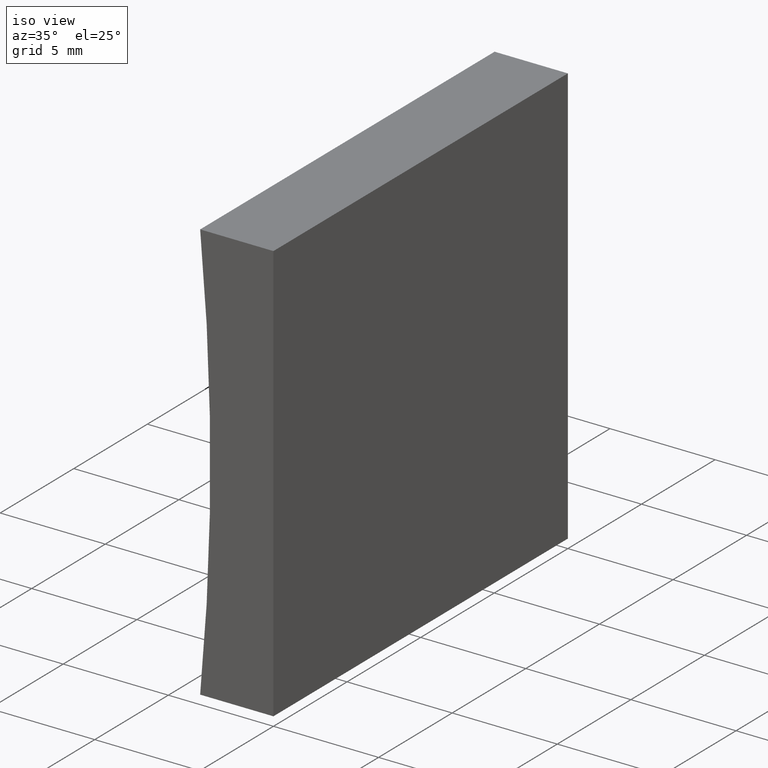
[diagram: clean part render]
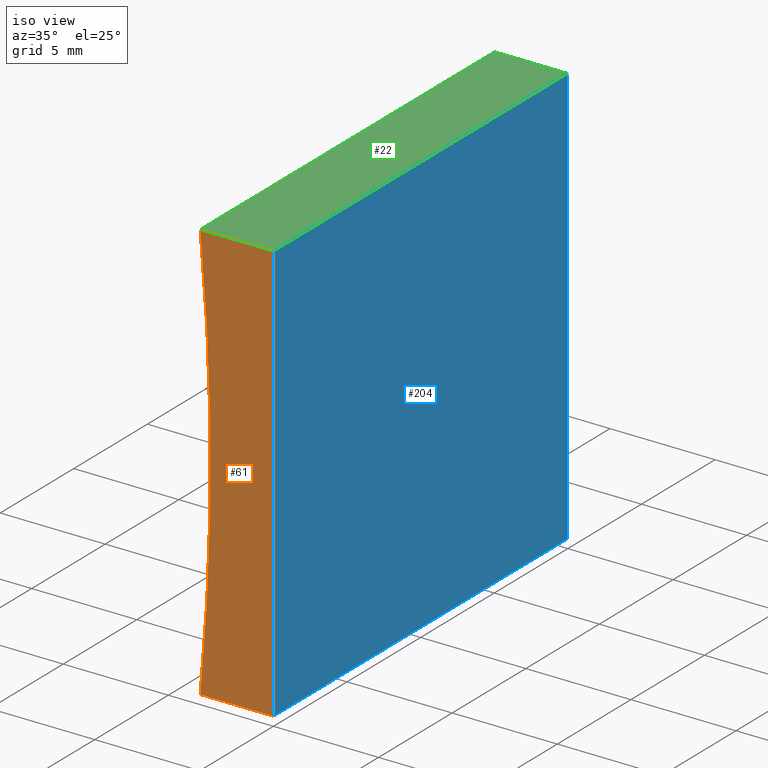
[diagram: same view with three faces highlighted in distinct colors, each labeled with its STEP entity id]
A machine part, iso view with three faces highlighted in distinct colors.
Their STEP definitions:

[orange] entity #61 — the highlighted planar face has unit normal (0, 1, 0).
#1 = VERTEX_POINT ( 'NONE', #35 ) ;
#5 = EDGE_CURVE ( 'NONE', #1, #146, #85, .T. ) ;
#10 = AXIS2_PLACEMENT_3D ( 'NONE', #198, #184, #137 ) ;
#13 = FACE_OUTER_BOUND ( 'NONE', #107, .T. ) ;
#15 = DIRECTION ( 'NONE',  ( 0.0000000000000000000, 1.000000000000000000, 0.0000000000000000000 ) ) ;
#27 = VERTEX_POINT ( 'NONE', #163 ) ;
#33 = EDGE_CURVE ( 'NONE', #146, #96, #42, .T. ) ;
#35 = CARTESIAN_POINT ( 'NONE',  ( -3.484695015755795200, 0.0000000000000000000, 19.99999999999999600 ) ) ;
#38 = CARTESIAN_POINT ( 'NONE',  ( 0.0000000000000000000, 0.0000000000000000000, 0.0000000000000000000 ) ) ;
#41 = CARTESIAN_POINT ( 'NONE',  ( 1.224646799147353300E-015, 0.0000000000000000000, 20.00000000000000000 ) ) ;
#42 = LINE ( 'NONE', #159, #108 ) ;
#44 = VECTOR ( 'NONE', #78, 1000.000000000000000 ) ;
#61 = ADVANCED_FACE ( 'NONE', ( #13 ), #122, .F. ) ;
#75 = CIRCLE ( 'NONE', #10, 103.4000000000000200 ) ;
#77 = DIRECTION ( 'NONE',  ( 1.000000000000000000, -0.0000000000000000000, 9.956242759457458300E-016 ) ) ;
#78 = DIRECTION ( 'NONE',  ( -1.000000000000000000, 0.0000000000000000000, 9.956242759457456300E-016 ) ) ;
#84 = CARTESIAN_POINT ( 'NONE',  ( 0.0000000000000000000, 0.0000000000000000000, 0.0000000000000000000 ) ) ;
#85 = LINE ( 'NONE', #139, #158 ) ;
#87 = LINE ( 'NONE', #38, #44 ) ;
#90 = EDGE_CURVE ( 'NONE', #27, #1, #75, .T. ) ;
#95 = EDGE_CURVE ( 'NONE', #96, #27, #87, .T. ) ;
#96 = VERTEX_POINT ( 'NONE', #84 ) ;
#106 = DIRECTION ( 'NONE',  ( -6.123233995736766000E-017, -0.0000000000000000000, -1.000000000000000000 ) ) ;
#107 = EDGE_LOOP ( 'NONE', ( #134, #113, #141, #177 ) ) ;
#108 = VECTOR ( 'NONE', #106, 1000.000000000000000 ) ;
#112 = AXIS2_PLACEMENT_3D ( 'NONE', #148, #15, #164 ) ;
#113 = ORIENTED_EDGE ( 'NONE', *, *, #33, .F. ) ;
#122 = PLANE ( 'NONE',  #112 ) ;
#134 = ORIENTED_EDGE ( 'NONE', *, *, #95, .F. ) ;
#137 = DIRECTION ( 'NONE',  ( 0.0000000000000000000, 0.0000000000000000000, 1.000000000000000000 ) ) ;
#139 = CARTESIAN_POINT ( 'NONE',  ( 1.224646799147353300E-015, 0.0000000000000000000, 20.00000000000000000 ) ) ;
#141 = ORIENTED_EDGE ( 'NONE', *, *, #5, .F. ) ;
#146 = VERTEX_POINT ( 'NONE', #41 ) ;
#148 = CARTESIAN_POINT ( 'NONE',  ( -106.4000000000000100, 0.0000000000000000000, 10.00000000000001600 ) ) ;
#158 = VECTOR ( 'NONE', #77, 1000.000000000000000 ) ;
#159 = CARTESIAN_POINT ( 'NONE',  ( 0.0000000000000000000, 0.0000000000000000000, 0.0000000000000000000 ) ) ;
#163 = CARTESIAN_POINT ( 'NONE',  ( -3.484695015755795200, 0.0000000000000000000, 1.040834085586084300E-014 ) ) ;
#164 = DIRECTION ( 'NONE',  ( 0.0000000000000000000, -0.0000000000000000000, 1.000000000000000000 ) ) ;
#177 = ORIENTED_EDGE ( 'NONE', *, *, #90, .F. ) ;
#184 = DIRECTION ( 'NONE',  ( -0.0000000000000000000, -1.000000000000000000, -0.0000000000000000000 ) ) ;
#198 = CARTESIAN_POINT ( 'NONE',  ( -106.4000000000000100, 0.0000000000000000000, 10.00000000000001600 ) ) ;

[blue] entity #204 — the highlighted planar face has unit normal (-1, 0, 0).
#4 = VECTOR ( 'NONE', #156, 1000.000000000000000 ) ;
#6 = LINE ( 'NONE', #105, #165 ) ;
#23 = CARTESIAN_POINT ( 'NONE',  ( 1.224646799147353300E-015, 20.00000000000000000, 20.00000000000000000 ) ) ;
#24 = VERTEX_POINT ( 'NONE', #56 ) ;
#33 = EDGE_CURVE ( 'NONE', #146, #96, #42, .T. ) ;
#36 = DIRECTION ( 'NONE',  ( -1.000000000000000000, 0.0000000000000000000, 6.123233995736766000E-017 ) ) ;
#41 = CARTESIAN_POINT ( 'NONE',  ( 1.224646799147353300E-015, 0.0000000000000000000, 20.00000000000000000 ) ) ;
#42 = LINE ( 'NONE', #159, #108 ) ;
#45 = EDGE_CURVE ( 'NONE', #169, #24, #138, .T. ) ;
#47 = DIRECTION ( 'NONE',  ( -0.0000000000000000000, -1.000000000000000000, -0.0000000000000000000 ) ) ;
#48 = ORIENTED_EDGE ( 'NONE', *, *, #45, .F. ) ;
#56 = CARTESIAN_POINT ( 'NONE',  ( 0.0000000000000000000, 20.00000000000000000, 0.0000000000000000000 ) ) ;
#68 = DIRECTION ( 'NONE',  ( 6.123233995736766000E-017, 0.0000000000000000000, 1.000000000000000000 ) ) ;
#71 = LINE ( 'NONE', #82, #173 ) ;
#81 = DIRECTION ( 'NONE',  ( -0.0000000000000000000, -1.000000000000000000, -0.0000000000000000000 ) ) ;
#82 = CARTESIAN_POINT ( 'NONE',  ( 1.224646799147353300E-015, 20.00000000000000000, 20.00000000000000000 ) ) ;
#84 = CARTESIAN_POINT ( 'NONE',  ( 0.0000000000000000000, 0.0000000000000000000, 0.0000000000000000000 ) ) ;
#86 = EDGE_CURVE ( 'NONE', #24, #96, #6, .T. ) ;
#94 = CARTESIAN_POINT ( 'NONE',  ( 0.0000000000000000000, 20.00000000000000000, 0.0000000000000000000 ) ) ;
#96 = VERTEX_POINT ( 'NONE', #84 ) ;
#104 = ORIENTED_EDGE ( 'NONE', *, *, #195, .T. ) ;
#105 = CARTESIAN_POINT ( 'NONE',  ( 0.0000000000000000000, 20.00000000000000000, 0.0000000000000000000 ) ) ;
#106 = DIRECTION ( 'NONE',  ( -6.123233995736766000E-017, -0.0000000000000000000, -1.000000000000000000 ) ) ;
#108 = VECTOR ( 'NONE', #106, 1000.000000000000000 ) ;
#114 = ORIENTED_EDGE ( 'NONE', *, *, #86, .F. ) ;
#120 = FACE_OUTER_BOUND ( 'NONE', #188, .T. ) ;
#130 = PLANE ( 'NONE',  #133 ) ;
#133 = AXIS2_PLACEMENT_3D ( 'NONE', #94, #36, #68 ) ;
#138 = LINE ( 'NONE', #144, #4 ) ;
#144 = CARTESIAN_POINT ( 'NONE',  ( 0.0000000000000000000, 20.00000000000000000, 0.0000000000000000000 ) ) ;
#146 = VERTEX_POINT ( 'NONE', #41 ) ;
#156 = DIRECTION ( 'NONE',  ( -6.123233995736766000E-017, -0.0000000000000000000, -1.000000000000000000 ) ) ;
#159 = CARTESIAN_POINT ( 'NONE',  ( 0.0000000000000000000, 0.0000000000000000000, 0.0000000000000000000 ) ) ;
#165 = VECTOR ( 'NONE', #47, 1000.000000000000000 ) ;
#169 = VERTEX_POINT ( 'NONE', #23 ) ;
#173 = VECTOR ( 'NONE', #81, 1000.000000000000000 ) ;
#185 = ORIENTED_EDGE ( 'NONE', *, *, #33, .T. ) ;
#188 = EDGE_LOOP ( 'NONE', ( #185, #114, #48, #104 ) ) ;
#195 = EDGE_CURVE ( 'NONE', #169, #146, #71, .T. ) ;
#204 = ADVANCED_FACE ( 'NONE', ( #120 ), #130, .F. ) ;

[green] entity #22 — the highlighted planar face has unit normal (0, 0, -1).
#1 = VERTEX_POINT ( 'NONE', #35 ) ;
#2 = LINE ( 'NONE', #153, #152 ) ;
#5 = EDGE_CURVE ( 'NONE', #1, #146, #85, .T. ) ;
#11 = ORIENTED_EDGE ( 'NONE', *, *, #182, .F. ) ;
#16 = LINE ( 'NONE', #180, #128 ) ;
#22 = ADVANCED_FACE ( 'NONE', ( #202 ), #129, .F. ) ;
#23 = CARTESIAN_POINT ( 'NONE',  ( 1.224646799147353300E-015, 20.00000000000000000, 20.00000000000000000 ) ) ;
#32 = ORIENTED_EDGE ( 'NONE', *, *, #195, .F. ) ;
#35 = CARTESIAN_POINT ( 'NONE',  ( -3.484695015755795200, 0.0000000000000000000, 19.99999999999999600 ) ) ;
#41 = CARTESIAN_POINT ( 'NONE',  ( 1.224646799147353300E-015, 0.0000000000000000000, 20.00000000000000000 ) ) ;
#52 = ORIENTED_EDGE ( 'NONE', *, *, #5, .T. ) ;
#54 = CARTESIAN_POINT ( 'NONE',  ( 1.224646799147353300E-015, 20.00000000000000000, 20.00000000000000000 ) ) ;
#58 = CARTESIAN_POINT ( 'NONE',  ( -3.484695015755795200, 20.00000000000000000, 19.99999999999999600 ) ) ;
#65 = DIRECTION ( 'NONE',  ( 9.956242759457458300E-016, 0.0000000000000000000, -1.000000000000000000 ) ) ;
#71 = LINE ( 'NONE', #82, #173 ) ;
#77 = DIRECTION ( 'NONE',  ( 1.000000000000000000, -0.0000000000000000000, 9.956242759457458300E-016 ) ) ;
#81 = DIRECTION ( 'NONE',  ( -0.0000000000000000000, -1.000000000000000000, -0.0000000000000000000 ) ) ;
#82 = CARTESIAN_POINT ( 'NONE',  ( 1.224646799147353300E-015, 20.00000000000000000, 20.00000000000000000 ) ) ;
#85 = LINE ( 'NONE', #139, #158 ) ;
#100 = ORIENTED_EDGE ( 'NONE', *, *, #147, .T. ) ;
#116 = DIRECTION ( 'NONE',  ( -1.000000000000000000, 0.0000000000000000000, -9.956242759457458300E-016 ) ) ;
#117 = AXIS2_PLACEMENT_3D ( 'NONE', #54, #65, #116 ) ;
#123 = VERTEX_POINT ( 'NONE', #58 ) ;
#128 = VECTOR ( 'NONE', #183, 1000.000000000000000 ) ;
#129 = PLANE ( 'NONE',  #117 ) ;
#139 = CARTESIAN_POINT ( 'NONE',  ( 1.224646799147353300E-015, 0.0000000000000000000, 20.00000000000000000 ) ) ;
#146 = VERTEX_POINT ( 'NONE', #41 ) ;
#147 = EDGE_CURVE ( 'NONE', #123, #1, #2, .T. ) ;
#152 = VECTOR ( 'NONE', #201, 1000.000000000000000 ) ;
#153 = CARTESIAN_POINT ( 'NONE',  ( -3.484695015755795200, 20.00000000000000000, 19.99999999999999600 ) ) ;
#158 = VECTOR ( 'NONE', #77, 1000.000000000000000 ) ;
#169 = VERTEX_POINT ( 'NONE', #23 ) ;
#173 = VECTOR ( 'NONE', #81, 1000.000000000000000 ) ;
#180 = CARTESIAN_POINT ( 'NONE',  ( 1.224646799147353300E-015, 20.00000000000000000, 20.00000000000000000 ) ) ;
#182 = EDGE_CURVE ( 'NONE', #123, #169, #16, .T. ) ;
#183 = DIRECTION ( 'NONE',  ( 1.000000000000000000, -0.0000000000000000000, 9.956242759457458300E-016 ) ) ;
#187 = EDGE_LOOP ( 'NONE', ( #52, #32, #11, #100 ) ) ;
#195 = EDGE_CURVE ( 'NONE', #169, #146, #71, .T. ) ;
#201 = DIRECTION ( 'NONE',  ( -0.0000000000000000000, -1.000000000000000000, -0.0000000000000000000 ) ) ;
#202 = FACE_OUTER_BOUND ( 'NONE', #187, .T. ) ;